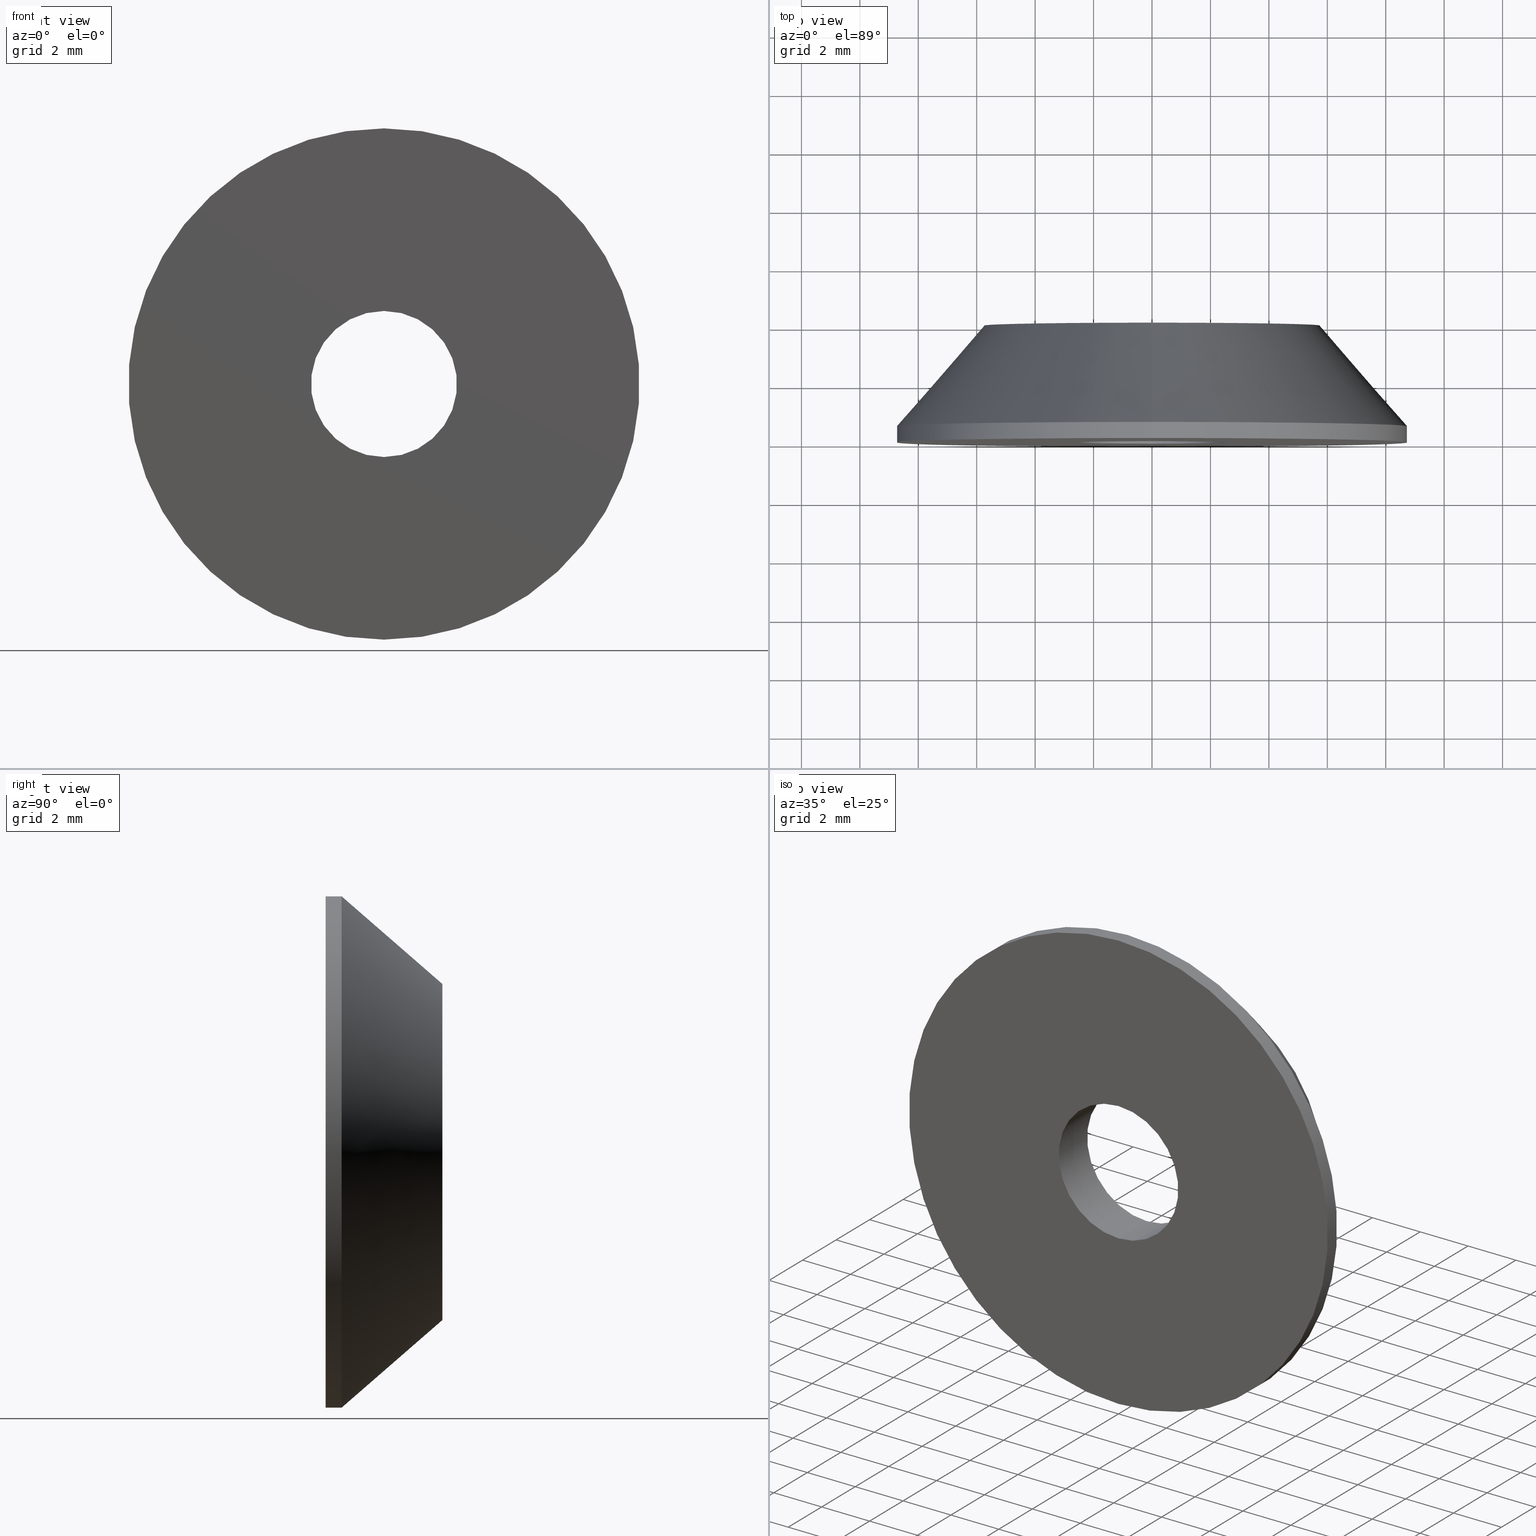
[diagram: canonical four-view strip — front | top / right | iso, engineering-drawing reading convention]
A machine part, canonical four-view strip (front | top / right | iso — engineering-drawing reading convention). The complete STEP part file that produces these views, byte-faithful:
ISO-10303-21;
HEADER;
FILE_DESCRIPTION (( 'STEP AP203' ),
    '1' );
FILE_NAME ('084.509.002.STEP',
    '2013-01-28T10:42:47',
    ( 'Alusic' ),
    ( 'Alusic' ),
    'SwSTEP 2.0',
    'SolidWorks 2011',
    '' );
FILE_SCHEMA (( 'CONFIG_CONTROL_DESIGN' ));
ENDSEC;

DATA;
#1 = EDGE_CURVE ( 'NONE', #4, #12, #210, .T. ) ;
#2 = DIRECTION ( 'NONE',  ( 0.0000000000000000000, -1.000000000000000000, 0.0000000000000000000 ) ) ;
#3 = MANIFOLD_SOLID_BREP ( 'Rivoluzione1', #135 ) ;
#4 = VERTEX_POINT ( 'NONE', #109 ) ;
#5 = EDGE_LOOP ( 'NONE', ( #36, #16, #14, #18 ) ) ;
#6 = ORIENTED_EDGE ( 'NONE', *, *, #9, .F. ) ;
#7 = VERTEX_POINT ( 'NONE', #211 ) ;
#8 = EDGE_LOOP ( 'NONE', ( #6, #11, #13, #48 ) ) ;
#9 = EDGE_CURVE ( 'NONE', #4, #7, #206, .T. ) ;
#10 = DIRECTION ( 'NONE',  ( 0.0000000000000000000, 0.0000000000000000000, -1.000000000000000000 ) ) ;
#11 = ORIENTED_EDGE ( 'NONE', *, *, #1, .T. ) ;
#12 = VERTEX_POINT ( 'NONE', #203 ) ;
#13 = ORIENTED_EDGE ( 'NONE', *, *, #46, .T. ) ;
#14 = ORIENTED_EDGE ( 'NONE', *, *, #21, .F. ) ;
#15 = ADVANCED_FACE ( 'NONE', ( #111 ), #108, .F. ) ;
#16 = ORIENTED_EDGE ( 'NONE', *, *, #39, .T. ) ;
#17 = VERTEX_POINT ( 'NONE', #197 ) ;
#18 = ORIENTED_EDGE ( 'NONE', *, *, #37, .F. ) ;
#19 = VERTEX_POINT ( 'NONE', #107 ) ;
#20 = EDGE_LOOP ( 'NONE', ( #23, #141, #124, #123 ) ) ;
#21 = EDGE_CURVE ( 'NONE', #25, #34, #195, .T. ) ;
#22 = EDGE_LOOP ( 'NONE', ( #121, #50, #49, #226 ) ) ;
#23 = ORIENTED_EDGE ( 'NONE', *, *, #40, .F. ) ;
#24 = VERTEX_POINT ( 'NONE', #196 ) ;
#25 = VERTEX_POINT ( 'NONE', #192 ) ;
#26 = VERTEX_POINT ( 'NONE', #185 ) ;
#27 = EDGE_CURVE ( 'NONE', #26, #17, #194, .T. ) ;
#28 = EDGE_CURVE ( 'NONE', #34, #180, #193, .T. ) ;
#29 = DIRECTION ( 'NONE',  ( 0.0000000000000000000, -1.000000000000000000, 0.0000000000000000000 ) ) ;
#30 = CARTESIAN_POINT ( 'NONE',  ( 0.0000000000000000000, 0.0000000000000000000, 0.0000000000000000000 ) ) ;
#31 = AXIS2_PLACEMENT_3D ( 'NONE', #30, #29, #45 ) ;
#32 = CIRCLE ( 'NONE', #31, 8.750000000000000000 ) ;
#33 = ADVANCED_FACE ( 'NONE', ( #204 ), #184, .T. ) ;
#34 = VERTEX_POINT ( 'NONE', #224 ) ;
#35 = EDGE_CURVE ( 'NONE', #7, #38, #95, .T. ) ;
#36 = ORIENTED_EDGE ( 'NONE', *, *, #27, .T. ) ;
#37 = EDGE_CURVE ( 'NONE', #26, #25, #218, .T. ) ;
#38 = VERTEX_POINT ( 'NONE', #219 ) ;
#39 = EDGE_CURVE ( 'NONE', #17, #34, #60, .T. ) ;
#40 = EDGE_CURVE ( 'NONE', #19, #24, #191, .T. ) ;
#41 = DIRECTION ( 'NONE',  ( 0.0000000000000000000, 0.0000000000000000000, 1.000000000000000000 ) ) ;
#42 = CARTESIAN_POINT ( 'NONE',  ( 0.0000000000000000000, 0.0000000000000000000, 0.0000000000000000000 ) ) ;
#43 = AXIS2_PLACEMENT_3D ( 'NONE', #42, #41, #112 ) ;
#44 = CIRCLE ( 'NONE', #65, 8.750000000000000000 ) ;
#45 = DIRECTION ( 'NONE',  ( 0.0000000000000000000, 0.0000000000000000000, -1.000000000000000000 ) ) ;
#46 = EDGE_CURVE ( 'NONE', #12, #38, #96, .T. ) ;
#47 = ADVANCED_FACE ( 'NONE', ( #67 ), #59, .T. ) ;
#48 = ORIENTED_EDGE ( 'NONE', *, *, #35, .F. ) ;
#49 = ORIENTED_EDGE ( 'NONE', *, *, #122, .F. ) ;
#50 = ORIENTED_EDGE ( 'NONE', *, *, #28, .T. ) ;
#51 = CARTESIAN_POINT ( 'NONE',  ( 0.0000000000000000000, 1.700000000000000200, 0.0000000000000000000 ) ) ;
#52 = CARTESIAN_POINT ( 'NONE',  ( 0.0000000000000000000, 0.0000000000000000000, 0.0000000000000000000 ) ) ;
#53 = CYLINDRICAL_SURFACE ( 'NONE', #66, 8.750000000000000000 ) ;
#54 = DIRECTION ( 'NONE',  ( 0.0000000000000000000, -1.000000000000000000, 0.0000000000000000000 ) ) ;
#55 = CARTESIAN_POINT ( 'NONE',  ( 0.0000000000000000000, 0.0000000000000000000, 0.0000000000000000000 ) ) ;
#56 = DIRECTION ( 'NONE',  ( 8.035871629012636900E-017, -0.7546055221635046300, 0.6561787149247867400 ) ) ;
#57 = VECTOR ( 'NONE', #56, 1000.000000000000000 ) ;
#58 = CARTESIAN_POINT ( 'NONE',  ( 7.041719095097280900E-016, 4.000000000000000000, 5.750000000000000000 ) ) ;
#59 = CYLINDRICAL_SURFACE ( 'NONE', #63, 8.750000000000000000 ) ;
#60 = LINE ( 'NONE', #58, #57 ) ;
#61 = DIRECTION ( 'NONE',  ( 0.0000000000000000000, 0.0000000000000000000, -1.000000000000000000 ) ) ;
#62 = VECTOR ( 'NONE', #216, 1000.000000000000000 ) ;
#63 = AXIS2_PLACEMENT_3D ( 'NONE', #55, #54, #61 ) ;
#64 = DIRECTION ( 'NONE',  ( 0.0000000000000000000, -1.000000000000000000, 0.0000000000000000000 ) ) ;
#65 = AXIS2_PLACEMENT_3D ( 'NONE', #83, #228, #227 ) ;
#66 = AXIS2_PLACEMENT_3D ( 'NONE', #52, #72, #86 ) ;
#67 = FACE_OUTER_BOUND ( 'NONE', #22, .T. ) ;
#68 = DIRECTION ( 'NONE',  ( 0.0000000000000000000, 0.0000000000000000000, -1.000000000000000000 ) ) ;
#69 = DIRECTION ( 'NONE',  ( 0.0000000000000000000, -1.000000000000000000, 0.0000000000000000000 ) ) ;
#70 = CARTESIAN_POINT ( 'NONE',  ( 0.0000000000000000000, 1.700000000000000200, 0.0000000000000000000 ) ) ;
#71 = AXIS2_PLACEMENT_3D ( 'NONE', #70, #69, #68 ) ;
#72 = DIRECTION ( 'NONE',  ( 0.0000000000000000000, -1.000000000000000000, 0.0000000000000000000 ) ) ;
#73 = FACE_BOUND ( 'NONE', #130, .T. ) ;
#74 = CIRCLE ( 'NONE', #170, 5.750000000000000000 ) ;
#75 = ORIENTED_EDGE ( 'NONE', *, *, #153, .T. ) ;
#76 = ADVANCED_FACE ( 'NONE', ( #88 ), #53, .T. ) ;
#77 = ORIENTED_EDGE ( 'NONE', *, *, #89, .T. ) ;
#78 = ORIENTED_EDGE ( 'NONE', *, *, #28, .F. ) ;
#79 = EDGE_LOOP ( 'NONE', ( #125, #138 ) ) ;
#80 = ADVANCED_FACE ( 'NONE', ( #87 ), #85, .T. ) ;
#81 = CARTESIAN_POINT ( 'NONE',  ( 0.0000000000000000000, 4.000000000000000000, 0.0000000000000000000 ) ) ;
#82 = AXIS2_PLACEMENT_3D ( 'NONE', #175, #174, #173 ) ;
#83 = CARTESIAN_POINT ( 'NONE',  ( 0.0000000000000000000, 0.5499999999999983800, 0.0000000000000000000 ) ) ;
#84 = CARTESIAN_POINT ( 'NONE',  ( 3.061616997868382600E-016, 0.0000000000000000000, 2.499999999999999600 ) ) ;
#85 = CONICAL_SURFACE ( 'NONE', #82, 5.750000000000000000, 0.7157435896688801900 ) ;
#86 = DIRECTION ( 'NONE',  ( 0.0000000000000000000, 0.0000000000000000000, -1.000000000000000000 ) ) ;
#87 = FACE_OUTER_BOUND ( 'NONE', #151, .T. ) ;
#88 = FACE_OUTER_BOUND ( 'NONE', #177, .T. ) ;
#89 = EDGE_CURVE ( 'NONE', #17, #26, #74, .T. ) ;
#90 = ORIENTED_EDGE ( 'NONE', *, *, #39, .F. ) ;
#91 = ORIENTED_EDGE ( 'NONE', *, *, #9, .T. ) ;
#92 = ORIENTED_EDGE ( 'NONE', *, *, #37, .T. ) ;
#93 = ORIENTED_EDGE ( 'NONE', *, *, #147, .F. ) ;
#94 = DIRECTION ( 'NONE',  ( 0.0000000000000000000, -1.000000000000000000, 0.0000000000000000000 ) ) ;
#95 = LINE ( 'NONE', #222, #221 ) ;
#96 = CIRCLE ( 'NONE', #71, 5.000000000000000900 ) ;
#97 = DIRECTION ( 'NONE',  ( 0.0000000000000000000, -1.000000000000000000, 0.0000000000000000000 ) ) ;
#98 = CARTESIAN_POINT ( 'NONE',  ( 0.0000000000000000000, 4.000000000000000000, 0.0000000000000000000 ) ) ;
#99 = DIRECTION ( 'NONE',  ( 0.0000000000000000000, -1.000000000000000000, 0.0000000000000000000 ) ) ;
#100 = VECTOR ( 'NONE', #99, 1000.000000000000000 ) ;
#101 = CARTESIAN_POINT ( 'NONE',  ( 1.071565949253934100E-015, 0.0000000000000000000, 8.750000000000000000 ) ) ;
#102 = DIRECTION ( 'NONE',  ( 0.0000000000000000000, 0.0000000000000000000, -1.000000000000000000 ) ) ;
#103 = DIRECTION ( 'NONE',  ( 0.0000000000000000000, -1.000000000000000000, 0.0000000000000000000 ) ) ;
#104 = CARTESIAN_POINT ( 'NONE',  ( 0.0000000000000000000, 4.000000000000000000, 0.0000000000000000000 ) ) ;
#105 = AXIS2_PLACEMENT_3D ( 'NONE', #104, #103, #102 ) ;
#106 = DIRECTION ( 'NONE',  ( 0.0000000000000000000, 0.0000000000000000000, -1.000000000000000000 ) ) ;
#107 = CARTESIAN_POINT ( 'NONE',  ( 3.061616997868383100E-016, 1.700000000000000200, 2.500000000000000000 ) ) ;
#108 = CYLINDRICAL_SURFACE ( 'NONE', #198, 5.000000000000000900 ) ;
#109 = CARTESIAN_POINT ( 'NONE',  ( 6.123233995736766300E-016, 4.000000000000000000, 5.000000000000000000 ) ) ;
#110 = AXIS2_PLACEMENT_3D ( 'NONE', #201, #200, #199 ) ;
#111 = FACE_OUTER_BOUND ( 'NONE', #8, .T. ) ;
#112 = DIRECTION ( 'NONE',  ( 1.000000000000000000, 0.0000000000000000000, 0.0000000000000000000 ) ) ;
#113 = ORIENTED_EDGE ( 'NONE', *, *, #144, .T. ) ;
#114 = ORIENTED_EDGE ( 'NONE', *, *, #153, .F. ) ;
#115 = ORIENTED_EDGE ( 'NONE', *, *, #181, .T. ) ;
#116 = ORIENTED_EDGE ( 'NONE', *, *, #35, .T. ) ;
#117 = ORIENTED_EDGE ( 'NONE', *, *, #133, .T. ) ;
#118 = ORIENTED_EDGE ( 'NONE', *, *, #126, .T. ) ;
#119 = ADVANCED_FACE ( 'NONE', ( #171, #73 ), #172, .F. ) ;
#120 = ORIENTED_EDGE ( 'NONE', *, *, #128, .F. ) ;
#121 = ORIENTED_EDGE ( 'NONE', *, *, #21, .T. ) ;
#122 = EDGE_CURVE ( 'NONE', #183, #180, #32, .T. ) ;
#123 = ORIENTED_EDGE ( 'NONE', *, *, #181, .F. ) ;
#124 = ORIENTED_EDGE ( 'NONE', *, *, #142, .T. ) ;
#125 = ORIENTED_EDGE ( 'NONE', *, *, #27, .F. ) ;
#126 = EDGE_CURVE ( 'NONE', #179, #176, #158, .T. ) ;
#127 = EDGE_LOOP ( 'NONE', ( #120, #213, #115, #118 ) ) ;
#128 = EDGE_CURVE ( 'NONE', #19, #176, #168, .T. ) ;
#129 = ORIENTED_EDGE ( 'NONE', *, *, #144, .F. ) ;
#130 = EDGE_LOOP ( 'NONE', ( #145, #132 ) ) ;
#131 = ORIENTED_EDGE ( 'NONE', *, *, #46, .F. ) ;
#132 = ORIENTED_EDGE ( 'NONE', *, *, #40, .T. ) ;
#133 = EDGE_CURVE ( 'NONE', #7, #4, #230, .T. ) ;
#134 = ADVANCED_FACE ( 'NONE', ( #259, #234 ), #262, .F. ) ;
#135 = CLOSED_SHELL ( 'NONE', ( #15, #33, #47, #225, #215, #146, #76, #80, #134, #139, #119 ) ) ;
#136 = CARTESIAN_POINT ( 'NONE',  ( 0.0000000000000000000, 0.0000000000000000000, 0.0000000000000000000 ) ) ;
#137 = EDGE_LOOP ( 'NONE', ( #117, #91 ) ) ;
#138 = ORIENTED_EDGE ( 'NONE', *, *, #89, .F. ) ;
#139 = ADVANCED_FACE ( 'NONE', ( #236 ), #241, .F. ) ;
#140 = EDGE_LOOP ( 'NONE', ( #129, #131 ) ) ;
#141 = ORIENTED_EDGE ( 'NONE', *, *, #128, .T. ) ;
#142 = EDGE_CURVE ( 'NONE', #176, #179, #232, .T. ) ;
#143 = ORIENTED_EDGE ( 'NONE', *, *, #133, .F. ) ;
#144 = EDGE_CURVE ( 'NONE', #38, #12, #242, .T. ) ;
#145 = ORIENTED_EDGE ( 'NONE', *, *, #182, .T. ) ;
#146 = ADVANCED_FACE ( 'NONE', ( #261, #240 ), #269, .F. ) ;
#147 = EDGE_CURVE ( 'NONE', #180, #183, #246, .T. ) ;
#148 = ORIENTED_EDGE ( 'NONE', *, *, #126, .F. ) ;
#149 = EDGE_LOOP ( 'NONE', ( #155, #156 ) ) ;
#150 = ORIENTED_EDGE ( 'NONE', *, *, #142, .F. ) ;
#151 = EDGE_LOOP ( 'NONE', ( #90, #77, #92, #114 ) ) ;
#152 = ORIENTED_EDGE ( 'NONE', *, *, #1, .F. ) ;
#153 = EDGE_CURVE ( 'NONE', #34, #25, #44, .T. ) ;
#154 = EDGE_LOOP ( 'NONE', ( #152, #143, #116, #113 ) ) ;
#155 = ORIENTED_EDGE ( 'NONE', *, *, #122, .T. ) ;
#156 = ORIENTED_EDGE ( 'NONE', *, *, #147, .T. ) ;
#157 = ORIENTED_EDGE ( 'NONE', *, *, #214, .T. ) ;
#158 = CIRCLE ( 'NONE', #167, 2.499999999999999600 ) ;
#159 = DIRECTION ( 'NONE',  ( 0.0000000000000000000, 0.0000000000000000000, -1.000000000000000000 ) ) ;
#160 = DIRECTION ( 'NONE',  ( 0.0000000000000000000, -1.000000000000000000, 0.0000000000000000000 ) ) ;
#161 = CARTESIAN_POINT ( 'NONE',  ( -5.000000000000004400, 1.700000000000000200, 0.0000000000000000000 ) ) ;
#162 = AXIS2_PLACEMENT_3D ( 'NONE', #161, #160, #159 ) ;
#163 = DIRECTION ( 'NONE',  ( 0.0000000000000000000, -1.000000000000000000, 0.0000000000000000000 ) ) ;
#164 = VECTOR ( 'NONE', #163, 1000.000000000000000 ) ;
#165 = DIRECTION ( 'NONE',  ( 0.0000000000000000000, -1.000000000000000000, 0.0000000000000000000 ) ) ;
#166 = CARTESIAN_POINT ( 'NONE',  ( 0.0000000000000000000, 0.0000000000000000000, 0.0000000000000000000 ) ) ;
#167 = AXIS2_PLACEMENT_3D ( 'NONE', #166, #165, #10 ) ;
#168 = LINE ( 'NONE', #84, #164 ) ;
#169 = DIRECTION ( 'NONE',  ( 0.0000000000000000000, 0.0000000000000000000, -1.000000000000000000 ) ) ;
#170 = AXIS2_PLACEMENT_3D ( 'NONE', #81, #64, #169 ) ;
#171 = FACE_OUTER_BOUND ( 'NONE', #140, .T. ) ;
#172 = PLANE ( 'NONE',  #162 ) ;
#173 = DIRECTION ( 'NONE',  ( 0.0000000000000000000, 0.0000000000000000000, -1.000000000000000000 ) ) ;
#174 = DIRECTION ( 'NONE',  ( 0.0000000000000000000, -1.000000000000000000, 0.0000000000000000000 ) ) ;
#175 = CARTESIAN_POINT ( 'NONE',  ( 0.0000000000000000000, 4.000000000000000000, 0.0000000000000000000 ) ) ;
#176 = VERTEX_POINT ( 'NONE', #282 ) ;
#177 = EDGE_LOOP ( 'NONE', ( #78, #75, #157, #93 ) ) ;
#178 = EDGE_LOOP ( 'NONE', ( #148, #150 ) ) ;
#179 = VERTEX_POINT ( 'NONE', #275 ) ;
#180 = VERTEX_POINT ( 'NONE', #281 ) ;
#181 = EDGE_CURVE ( 'NONE', #24, #179, #272, .T. ) ;
#182 = EDGE_CURVE ( 'NONE', #24, #19, #273, .T. ) ;
#183 = VERTEX_POINT ( 'NONE', #253 ) ;
#184 = CONICAL_SURFACE ( 'NONE', #212, 5.750000000000000000, 0.7157435896688801900 ) ;
#185 = CARTESIAN_POINT ( 'NONE',  ( 0.0000000000000000000, 4.000000000000000000, -5.750000000000000000 ) ) ;
#186 = DIRECTION ( 'NONE',  ( 0.0000000000000000000, 0.0000000000000000000, -1.000000000000000000 ) ) ;
#187 = DIRECTION ( 'NONE',  ( 0.0000000000000000000, 0.0000000000000000000, -1.000000000000000000 ) ) ;
#188 = DIRECTION ( 'NONE',  ( 0.0000000000000000000, -1.000000000000000000, 0.0000000000000000000 ) ) ;
#189 = CARTESIAN_POINT ( 'NONE',  ( 0.0000000000000000000, 0.5499999999999983800, 0.0000000000000000000 ) ) ;
#190 = AXIS2_PLACEMENT_3D ( 'NONE', #189, #188, #187 ) ;
#191 = CIRCLE ( 'NONE', #223, 2.500000000000000000 ) ;
#192 = CARTESIAN_POINT ( 'NONE',  ( 0.0000000000000000000, 0.5499999999999983800, -8.750000000000000000 ) ) ;
#193 = LINE ( 'NONE', #101, #100 ) ;
#194 = CIRCLE ( 'NONE', #105, 5.750000000000000000 ) ;
#195 = CIRCLE ( 'NONE', #190, 8.750000000000000000 ) ;
#196 = CARTESIAN_POINT ( 'NONE',  ( 0.0000000000000000000, 1.700000000000000200, -2.500000000000000000 ) ) ;
#197 = CARTESIAN_POINT ( 'NONE',  ( 8.878689293818312000E-016, 4.000000000000000000, 5.750000000000000000 ) ) ;
#198 = AXIS2_PLACEMENT_3D ( 'NONE', #136, #205, #202 ) ;
#199 = DIRECTION ( 'NONE',  ( 0.0000000000000000000, 0.0000000000000000000, -1.000000000000000000 ) ) ;
#200 = DIRECTION ( 'NONE',  ( 0.0000000000000000000, -1.000000000000000000, 0.0000000000000000000 ) ) ;
#201 = CARTESIAN_POINT ( 'NONE',  ( 0.0000000000000000000, 4.000000000000000000, 0.0000000000000000000 ) ) ;
#202 = DIRECTION ( 'NONE',  ( 0.0000000000000000000, 0.0000000000000000000, -1.000000000000000000 ) ) ;
#203 = CARTESIAN_POINT ( 'NONE',  ( 6.123233995736767300E-016, 1.700000000000000200, 5.000000000000000900 ) ) ;
#204 = FACE_OUTER_BOUND ( 'NONE', #5, .T. ) ;
#205 = DIRECTION ( 'NONE',  ( 0.0000000000000000000, -1.000000000000000000, 0.0000000000000000000 ) ) ;
#206 = CIRCLE ( 'NONE', #110, 5.000000000000000000 ) ;
#207 = DIRECTION ( 'NONE',  ( 0.0000000000000000000, -1.000000000000000000, 0.0000000000000000000 ) ) ;
#208 = VECTOR ( 'NONE', #207, 1000.000000000000000 ) ;
#209 = CARTESIAN_POINT ( 'NONE',  ( 6.123233995736767300E-016, 0.0000000000000000000, 5.000000000000000900 ) ) ;
#210 = LINE ( 'NONE', #209, #208 ) ;
#211 = CARTESIAN_POINT ( 'NONE',  ( 0.0000000000000000000, 4.000000000000000000, -5.000000000000000000 ) ) ;
#212 = AXIS2_PLACEMENT_3D ( 'NONE', #98, #94, #106 ) ;
#213 = ORIENTED_EDGE ( 'NONE', *, *, #182, .F. ) ;
#214 = EDGE_CURVE ( 'NONE', #25, #183, #249, .T. ) ;
#215 = ADVANCED_FACE ( 'NONE', ( #289 ), #296, .F. ) ;
#216 = DIRECTION ( 'NONE',  ( 0.0000000000000000000, -0.7546055221635046300, -0.6561787149247867400 ) ) ;
#217 = CARTESIAN_POINT ( 'NONE',  ( 0.0000000000000000000, 4.000000000000000000, -5.750000000000000000 ) ) ;
#218 = LINE ( 'NONE', #217, #62 ) ;
#219 = CARTESIAN_POINT ( 'NONE',  ( 0.0000000000000000000, 1.700000000000000200, -5.000000000000000900 ) ) ;
#220 = DIRECTION ( 'NONE',  ( 0.0000000000000000000, -1.000000000000000000, 0.0000000000000000000 ) ) ;
#221 = VECTOR ( 'NONE', #220, 1000.000000000000000 ) ;
#222 = CARTESIAN_POINT ( 'NONE',  ( 0.0000000000000000000, 0.0000000000000000000, -5.000000000000000900 ) ) ;
#223 = AXIS2_PLACEMENT_3D ( 'NONE', #51, #97, #186 ) ;
#224 = CARTESIAN_POINT ( 'NONE',  ( 1.071565949253934100E-015, 0.5499999999999983800, 8.750000000000000000 ) ) ;
#225 = ADVANCED_FACE ( 'NONE', ( #293 ), #290, .F. ) ;
#226 = ORIENTED_EDGE ( 'NONE', *, *, #214, .F. ) ;
#227 = DIRECTION ( 'NONE',  ( 0.0000000000000000000, 0.0000000000000000000, -1.000000000000000000 ) ) ;
#228 = DIRECTION ( 'NONE',  ( 0.0000000000000000000, -1.000000000000000000, 0.0000000000000000000 ) ) ;
#229 = AXIS2_PLACEMENT_3D ( 'NONE', #267, #266, #247 ) ;
#230 = CIRCLE ( 'NONE', #235, 5.000000000000000000 ) ;
#231 = AXIS2_PLACEMENT_3D ( 'NONE', #239, #257, #256 ) ;
#232 = CIRCLE ( 'NONE', #270, 2.499999999999999600 ) ;
#233 = DIRECTION ( 'NONE',  ( 0.0000000000000000000, -1.000000000000000000, 0.0000000000000000000 ) ) ;
#234 = FACE_BOUND ( 'NONE', #137, .T. ) ;
#235 = AXIS2_PLACEMENT_3D ( 'NONE', #254, #233, #271 ) ;
#236 = FACE_OUTER_BOUND ( 'NONE', #154, .T. ) ;
#237 = DIRECTION ( 'NONE',  ( 0.0000000000000000000, 0.0000000000000000000, -1.000000000000000000 ) ) ;
#238 = DIRECTION ( 'NONE',  ( 0.0000000000000000000, -1.000000000000000000, 0.0000000000000000000 ) ) ;
#239 = CARTESIAN_POINT ( 'NONE',  ( 0.0000000000000000000, 0.0000000000000000000, 0.0000000000000000000 ) ) ;
#240 = FACE_OUTER_BOUND ( 'NONE', #149, .T. ) ;
#241 = CYLINDRICAL_SURFACE ( 'NONE', #231, 5.000000000000000900 ) ;
#242 = CIRCLE ( 'NONE', #265, 5.000000000000000900 ) ;
#243 = DIRECTION ( 'NONE',  ( 0.0000000000000000000, 0.0000000000000000000, -1.000000000000000000 ) ) ;
#244 = DIRECTION ( 'NONE',  ( 0.0000000000000000000, -1.000000000000000000, 0.0000000000000000000 ) ) ;
#245 = AXIS2_PLACEMENT_3D ( 'NONE', #248, #244, #243 ) ;
#246 = CIRCLE ( 'NONE', #245, 8.750000000000000000 ) ;
#247 = DIRECTION ( 'NONE',  ( 0.0000000000000000000, 0.0000000000000000000, 1.000000000000000000 ) ) ;
#248 = CARTESIAN_POINT ( 'NONE',  ( 0.0000000000000000000, 0.0000000000000000000, 0.0000000000000000000 ) ) ;
#249 = LINE ( 'NONE', #264, #284 ) ;
#250 = DIRECTION ( 'NONE',  ( 0.0000000000000000000, 0.0000000000000000000, -1.000000000000000000 ) ) ;
#251 = DIRECTION ( 'NONE',  ( 0.0000000000000000000, -1.000000000000000000, 0.0000000000000000000 ) ) ;
#252 = CARTESIAN_POINT ( 'NONE',  ( 0.0000000000000000000, 1.700000000000000200, 0.0000000000000000000 ) ) ;
#253 = CARTESIAN_POINT ( 'NONE',  ( 0.0000000000000000000, 0.0000000000000000000, -8.750000000000000000 ) ) ;
#254 = CARTESIAN_POINT ( 'NONE',  ( 0.0000000000000000000, 4.000000000000000000, 0.0000000000000000000 ) ) ;
#255 = AXIS2_PLACEMENT_3D ( 'NONE', #260, #238, #237 ) ;
#256 = DIRECTION ( 'NONE',  ( 0.0000000000000000000, 0.0000000000000000000, -1.000000000000000000 ) ) ;
#257 = DIRECTION ( 'NONE',  ( 0.0000000000000000000, -1.000000000000000000, 0.0000000000000000000 ) ) ;
#258 = DIRECTION ( 'NONE',  ( 0.0000000000000000000, -1.000000000000000000, 0.0000000000000000000 ) ) ;
#259 = FACE_OUTER_BOUND ( 'NONE', #79, .T. ) ;
#260 = CARTESIAN_POINT ( 'NONE',  ( -5.750000000000032900, 4.000000000000000000, 0.0000000000000000000 ) ) ;
#261 = FACE_BOUND ( 'NONE', #178, .T. ) ;
#262 = PLANE ( 'NONE',  #255 ) ;
#263 = DIRECTION ( 'NONE',  ( 0.0000000000000000000, 0.0000000000000000000, -1.000000000000000000 ) ) ;
#264 = CARTESIAN_POINT ( 'NONE',  ( 0.0000000000000000000, 0.0000000000000000000, -8.750000000000000000 ) ) ;
#265 = AXIS2_PLACEMENT_3D ( 'NONE', #252, #251, #250 ) ;
#266 = DIRECTION ( 'NONE',  ( 0.0000000000000000000, 1.000000000000000000, 0.0000000000000000000 ) ) ;
#267 = CARTESIAN_POINT ( 'NONE',  ( -2.499999999999946700, 0.0000000000000000000, 0.0000000000000000000 ) ) ;
#268 = CARTESIAN_POINT ( 'NONE',  ( 0.0000000000000000000, 0.0000000000000000000, 0.0000000000000000000 ) ) ;
#269 = PLANE ( 'NONE',  #229 ) ;
#270 = AXIS2_PLACEMENT_3D ( 'NONE', #268, #258, #263 ) ;
#271 = DIRECTION ( 'NONE',  ( 0.0000000000000000000, 0.0000000000000000000, -1.000000000000000000 ) ) ;
#272 = LINE ( 'NONE', #280, #279 ) ;
#273 = CIRCLE ( 'NONE', #278, 2.500000000000000000 ) ;
#274 = CARTESIAN_POINT ( 'NONE',  ( 0.0000000000000000000, 1.700000000000000200, 0.0000000000000000000 ) ) ;
#275 = CARTESIAN_POINT ( 'NONE',  ( 0.0000000000000000000, 0.0000000000000000000, -2.499999999999999600 ) ) ;
#276 = DIRECTION ( 'NONE',  ( 0.0000000000000000000, 0.0000000000000000000, -1.000000000000000000 ) ) ;
#277 = DIRECTION ( 'NONE',  ( 0.0000000000000000000, -1.000000000000000000, 0.0000000000000000000 ) ) ;
#278 = AXIS2_PLACEMENT_3D ( 'NONE', #274, #277, #276 ) ;
#279 = VECTOR ( 'NONE', #2, 1000.000000000000000 ) ;
#280 = CARTESIAN_POINT ( 'NONE',  ( 0.0000000000000000000, 0.0000000000000000000, -2.499999999999999600 ) ) ;
#281 = CARTESIAN_POINT ( 'NONE',  ( 1.071565949253934100E-015, 0.0000000000000000000, 8.750000000000000000 ) ) ;
#282 = CARTESIAN_POINT ( 'NONE',  ( 3.061616997868382600E-016, 0.0000000000000000000, 2.499999999999999600 ) ) ;
#283 = DIRECTION ( 'NONE',  ( 0.0000000000000000000, -1.000000000000000000, 0.0000000000000000000 ) ) ;
#284 = VECTOR ( 'NONE', #283, 1000.000000000000000 ) ;
#285 = AXIS2_PLACEMENT_3D ( 'NONE', #294, #292, #291 ) ;
#286 = CARTESIAN_POINT ( 'NONE',  ( 0.0000000000000000000, 0.0000000000000000000, 0.0000000000000000000 ) ) ;
#287 = DIRECTION ( 'NONE',  ( 0.0000000000000000000, 0.0000000000000000000, -1.000000000000000000 ) ) ;
#288 = DIRECTION ( 'NONE',  ( 0.0000000000000000000, -1.000000000000000000, 0.0000000000000000000 ) ) ;
#289 = FACE_OUTER_BOUND ( 'NONE', #127, .T. ) ;
#290 = CYLINDRICAL_SURFACE ( 'NONE', #295, 2.499999999999999600 ) ;
#291 = DIRECTION ( 'NONE',  ( 0.0000000000000000000, 0.0000000000000000000, -1.000000000000000000 ) ) ;
#292 = DIRECTION ( 'NONE',  ( 0.0000000000000000000, -1.000000000000000000, 0.0000000000000000000 ) ) ;
#293 = FACE_OUTER_BOUND ( 'NONE', #20, .T. ) ;
#294 = CARTESIAN_POINT ( 'NONE',  ( 0.0000000000000000000, 0.0000000000000000000, 0.0000000000000000000 ) ) ;
#295 = AXIS2_PLACEMENT_3D ( 'NONE', #286, #288, #287 ) ;
#296 = CYLINDRICAL_SURFACE ( 'NONE', #285, 2.499999999999999600 ) ;
#297 = UNCERTAINTY_MEASURE_WITH_UNIT (LENGTH_MEASURE( 1.000000000000000100E-005 ), #301, 'distance_accuracy_value', 'NONE');
#298 =( NAMED_UNIT ( * ) SI_UNIT ( $, .STERADIAN. ) SOLID_ANGLE_UNIT ( ) );
#299 = ADVANCED_BREP_SHAPE_REPRESENTATION ( '084.509.002', ( #3, #43 ), #300 ) ;
#300 =( GEOMETRIC_REPRESENTATION_CONTEXT ( 3 ) GLOBAL_UNCERTAINTY_ASSIGNED_CONTEXT ( ( #297 ) ) GLOBAL_UNIT_ASSIGNED_CONTEXT ( ( #301, #302, #298 ) ) REPRESENTATION_CONTEXT ( 'NONE', 'WORKASPACE' ) );
#301 =( LENGTH_UNIT ( ) NAMED_UNIT ( * ) SI_UNIT ( .MILLI., .METRE. ) );
#302 =( NAMED_UNIT ( * ) PLANE_ANGLE_UNIT ( ) SI_UNIT ( $, .RADIAN. ) );
#303 = PRODUCT_DEFINITION_SHAPE ( 'NONE', 'NONE',  #342 ) ;
#304 = PRODUCT_RELATED_PRODUCT_CATEGORY ( 'detail', '', ( #339 ) ) ;
#305 = CC_DESIGN_SECURITY_CLASSIFICATION ( #326, ( #367 ) ) ;
#306 = CC_DESIGN_APPROVAL ( #314, ( #326 ) ) ;
#307 = APPROVAL_DATE_TIME ( #308, #314 ) ;
#308 = DATE_AND_TIME ( #309, #310 ) ;
#309 = CALENDAR_DATE ( 2013, 28, 1 ) ;
#310 = LOCAL_TIME ( 11, 42, 47.00000000000000000, #311 ) ;
#311 = COORDINATED_UNIVERSAL_TIME_OFFSET ( 1, 0, .AHEAD. ) ;
#312 = APPROVAL_PERSON_ORGANIZATION ( #316, #314, #313 ) ;
#313 = APPROVAL_ROLE ( '' ) ;
#314 = APPROVAL ( #315, 'NON SPECIFICATO' ) ;
#315 = APPROVAL_STATUS ( 'not_yet_approved' ) ;
#316 = PERSON_AND_ORGANIZATION ( #338, #379 ) ;
#317 = CC_DESIGN_DATE_AND_TIME_ASSIGNMENT ( #319, #318, ( #326 ) ) ;
#318 = DATE_TIME_ROLE ( 'classification_date' ) ;
#319 = DATE_AND_TIME ( #320, #321 ) ;
#320 = CALENDAR_DATE ( 2013, 28, 1 ) ;
#321 = LOCAL_TIME ( 11, 42, 47.00000000000000000, #322 ) ;
#322 = COORDINATED_UNIVERSAL_TIME_OFFSET ( 1, 0, .AHEAD. ) ;
#323 = CC_DESIGN_PERSON_AND_ORGANIZATION_ASSIGNMENT ( #325, #324, ( #326 ) ) ;
#324 = PERSON_AND_ORGANIZATION_ROLE ( 'classification_officer' ) ;
#325 = PERSON_AND_ORGANIZATION ( #338, #379 ) ;
#326 = SECURITY_CLASSIFICATION ( '', '', #327 ) ;
#327 = SECURITY_CLASSIFICATION_LEVEL ( 'unclassified' ) ;
#328 = CC_DESIGN_PERSON_AND_ORGANIZATION_ASSIGNMENT ( #330, #329, ( #367 ) ) ;
#329 = PERSON_AND_ORGANIZATION_ROLE ( 'design_supplier' ) ;
#330 = PERSON_AND_ORGANIZATION ( #338, #379 ) ;
#331 = CC_DESIGN_PERSON_AND_ORGANIZATION_ASSIGNMENT ( #333, #332, ( #367 ) ) ;
#332 = PERSON_AND_ORGANIZATION_ROLE ( 'creator' ) ;
#333 = PERSON_AND_ORGANIZATION ( #338, #379 ) ;
#334 = CC_DESIGN_APPROVAL ( #364, ( #367 ) ) ;
#335 = APPROVAL_DATE_TIME ( #336, #364 ) ;
#336 = DATE_AND_TIME ( #359, #360 ) ;
#337 = APPLICATION_PROTOCOL_DEFINITION ( 'international standard', 'config_control_design', 1994, #358 ) ;
#338 = PERSON ( 'NON SPECIFICATO', 'NON SPECIFICATO', 'NON SPECIFICATO', ('NON SPECIFICATO'), ('NON SPECIFICATO'), ('NON SPECIFICATO') ) ;
#339 = PRODUCT ( '084.509.002', '084.509.002', '', ( #340 ) ) ;
#340 = MECHANICAL_CONTEXT ( 'NONE', #358, 'mechanical' ) ;
#341 = PERSON_AND_ORGANIZATION ( #338, #379 ) ;
#342 = PRODUCT_DEFINITION ( 'NON CONOSCIUTO', '', #367, #343 ) ;
#343 = DESIGN_CONTEXT ( 'detailed design', #345, 'design' ) ;
#344 = APPLICATION_PROTOCOL_DEFINITION ( 'international standard', 'config_control_design', 1994, #345 ) ;
#345 = APPLICATION_CONTEXT ( 'configuration controlled 3d designs of mechanical parts and assemblies' ) ;
#346 = CC_DESIGN_PERSON_AND_ORGANIZATION_ASSIGNMENT ( #378, #377, ( #339 ) ) ;
#347 = SHAPE_DEFINITION_REPRESENTATION ( #303, #299 ) ;
#348 = CC_DESIGN_APPROVAL ( #356, ( #342 ) ) ;
#349 = APPROVAL_DATE_TIME ( #350, #356 ) ;
#350 = DATE_AND_TIME ( #351, #352 ) ;
#351 = CALENDAR_DATE ( 2013, 28, 1 ) ;
#352 = LOCAL_TIME ( 11, 42, 47.00000000000000000, #353 ) ;
#353 = COORDINATED_UNIVERSAL_TIME_OFFSET ( 1, 0, .AHEAD. ) ;
#354 = APPROVAL_PERSON_ORGANIZATION ( #341, #356, #355 ) ;
#355 = APPROVAL_ROLE ( '' ) ;
#356 = APPROVAL ( #357, 'NON SPECIFICATO' ) ;
#357 = APPROVAL_STATUS ( 'not_yet_approved' ) ;
#358 = APPLICATION_CONTEXT ( 'configuration controlled 3d designs of mechanical parts and assemblies' ) ;
#359 = CALENDAR_DATE ( 2013, 28, 1 ) ;
#360 = LOCAL_TIME ( 11, 42, 47.00000000000000000, #361 ) ;
#361 = COORDINATED_UNIVERSAL_TIME_OFFSET ( 1, 0, .AHEAD. ) ;
#362 = APPROVAL_PERSON_ORGANIZATION ( #366, #364, #363 ) ;
#363 = APPROVAL_ROLE ( '' ) ;
#364 = APPROVAL ( #365, 'NON SPECIFICATO' ) ;
#365 = APPROVAL_STATUS ( 'not_yet_approved' ) ;
#366 = PERSON_AND_ORGANIZATION ( #338, #379 ) ;
#367 = PRODUCT_DEFINITION_FORMATION_WITH_SPECIFIED_SOURCE ( 'TUTTO', '', #339, .NOT_KNOWN. ) ;
#368 = CC_DESIGN_DATE_AND_TIME_ASSIGNMENT ( #370, #369, ( #342 ) ) ;
#369 = DATE_TIME_ROLE ( 'creation_date' ) ;
#370 = DATE_AND_TIME ( #371, #372 ) ;
#371 = CALENDAR_DATE ( 2013, 28, 1 ) ;
#372 = LOCAL_TIME ( 11, 42, 47.00000000000000000, #373 ) ;
#373 = COORDINATED_UNIVERSAL_TIME_OFFSET ( 1, 0, .AHEAD. ) ;
#374 = CC_DESIGN_PERSON_AND_ORGANIZATION_ASSIGNMENT ( #376, #375, ( #342 ) ) ;
#375 = PERSON_AND_ORGANIZATION_ROLE ( 'creator' ) ;
#376 = PERSON_AND_ORGANIZATION ( #338, #379 ) ;
#377 = PERSON_AND_ORGANIZATION_ROLE ( 'design_owner' ) ;
#378 = PERSON_AND_ORGANIZATION ( #338, #379 ) ;
#379 = ORGANIZATION ( 'NON SPECIFICATO', 'NON SPECIFICATO', '' ) ;
ENDSEC;
END-ISO-10303-21;
